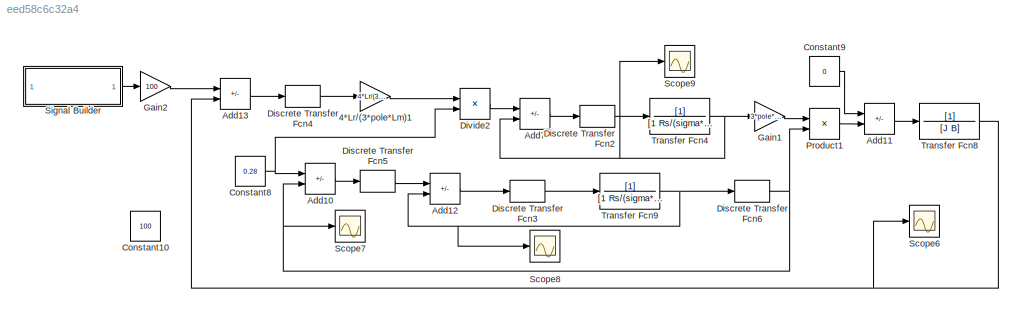
MODEL slx_eed58c6c32a4
KIND model
CONFIG AbsTol = auto
CONFIG EnableMultiTasking = off
CONFIG FixedStep = 0.001
CONFIG MaxStep = auto
CONFIG MinStep = auto
CONFIG RelTol = 1e-3
CONFIG SampleTimeConstraint = Unconstrained
CONFIG SolverName = FixedStepAuto
CONFIG StartTime = 0.0
CONFIG StopTime = 2
BLOCK [Gain] 4*Lr//(3*pole*Lm)1
  Gain = 4*Lr/(3*pole*Lm)
BLOCK [Sum] Add10
  IconShape = rectangular
  Inputs = +-
BLOCK [Sum] Add11
  IconShape = rectangular
  Inputs = -+
BLOCK [Sum] Add12
  IconShape = rectangular
  Inputs = +-
BLOCK [Sum] Add13
  IconShape = rectangular
  Inputs = +-
BLOCK [Sum] Add7
  IconShape = rectangular
  Inputs = +-
BLOCK [Constant] Constant10
  Value = 100
BLOCK [Constant] Constant8
  Value = 0.28
BLOCK [Constant] Constant9
  Value = 0
BLOCK [DiscreteTransferFcn] Discrete Transfer Fcn2
  Denominator = [1 -1]
  InputPortMap = u0
  Numerator = [105.95 -94.05]
  SampleTime = 0.001
BLOCK [DiscreteTransferFcn] Discrete Transfer Fcn3
  Denominator = [1 -1]
  InputPortMap = u0
  Numerator = [105.95 -94.05]
  SampleTime = 0.001
BLOCK [DiscreteTransferFcn] Discrete Transfer Fcn4
  Denominator = [1 -1]
  InputPortMap = u0
  Numerator = [10.00125 -9.99875]
  SampleTime = 0.001
BLOCK [DiscreteTransferFcn] Discrete Transfer Fcn5
  Denominator = [1 -1]
  InputPortMap = u0
  Numerator = [10.03575*2 -9.96425*2]
  SampleTime = 0.001
BLOCK [DiscreteTransferFcn] Discrete Transfer Fcn6
  Denominator = [1 -0.99286869]
  InputPortMap = u0
  Numerator = [0.00029119 0.00029119]
  SampleTime = 0.001
BLOCK [Product] Divide2
  Inputs = */
BLOCK [Gain] Gain1
  Gain = 3*pole*Lm/(4*Lr)
BLOCK [Gain] Gain2
  Gain = 100
BLOCK [Product] Product1
BLOCK [Scope] Scope6
  Floating = off
  NumInputPorts = 1
  ScopeSpecificationString = Simulink.scopes.TimeScopeBlockCfg('CurrentConfiguration', extmgr.ConfigurationSet(extmgr.Configuration('Core','General UI',true),extmgr.Configuration('Core','Source UI',true),extmgr.Configuration('Sources','WiredSimulink',true,'DataLoggingVariableName','ScopeData1'),extmgr.Configuration('Visuals','Time Domain',true,'SerializedDisplays',{struct('MinYLimReal','-12.59129','MaxYLimReal','113.3216','YL...<+1378ch>
BLOCK [Scope] Scope7
  Floating = off
  NumInputPorts = 1
  ScopeSpecificationString = Simulink.scopes.TimeScopeBlockCfg('CurrentConfiguration', extmgr.ConfigurationSet(extmgr.Configuration('Core','General UI',true),extmgr.Configuration('Core','Source UI',true),extmgr.Configuration('Sources','WiredSimulink',true,'DataLoggingVariableName','ScopeData2'),extmgr.Configuration('Visuals','Time Domain',true,'SerializedDisplays',{struct('MinYLimReal','-0.035','MaxYLimReal','0.315','YLabelRe...<+1369ch>
BLOCK [Scope] Scope8
  Floating = off
  NumInputPorts = 1
  ScopeSpecificationString = Simulink.scopes.TimeScopeBlockCfg('CurrentConfiguration', extmgr.ConfigurationSet(extmgr.Configuration('Core','General UI',true),extmgr.Configuration('Core','Source UI',true),extmgr.Configuration('Sources','WiredSimulink',true,'DataLoggingVariableName','ScopeData3'),extmgr.Configuration('Visuals','Time Domain',true,'SerializedDisplays',{struct('MinYLimReal','-0.8058','MaxYLimReal','7.25219','YLabe...<+1370ch>
BLOCK [Scope] Scope9
  Floating = off
  NumInputPorts = 1
  ScopeSpecificationString = Simulink.scopes.TimeScopeBlockCfg('CurrentConfiguration', extmgr.ConfigurationSet(extmgr.Configuration('Core','General UI',true),extmgr.Configuration('Core','Source UI',true),extmgr.Configuration('Sources','WiredSimulink',true,'DataLoggingVariableName','ScopeData4'),extmgr.Configuration('Visuals','Time Domain',true,'SerializedDisplays',{struct('MinYLimReal','0.295','MaxYLimReal','1.39571','YLabelR...<+1381ch>
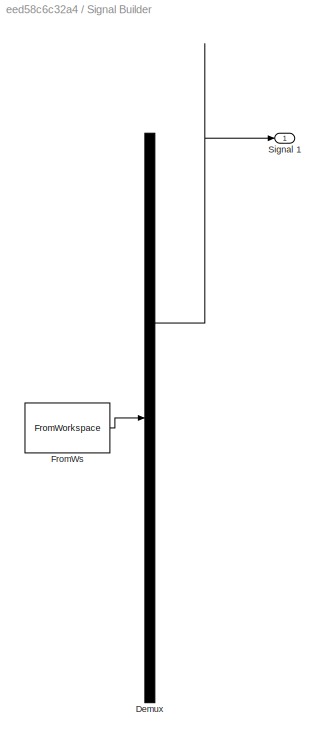
BLOCK [SubSystem] Signal Builder
  ClipboardFcn = sigbuilder_block('clipboard');
  CloseFcn = sigbuilder_block('close');
  ContinueFcn = sigbuilder_block('continue');
  CopyFcn = sigbuilder_block('copy');
  DeleteFcn = sigbuilder_block('delete');
  LoadFcn = sigbuilder_block('load');
  MaskHideContents = on
  ModelCloseFcn = sigbuilder_block('modelClose');
  NameChangeFcn = sigbuilder_block('namechange');
  OpenFcn = sigbuilder_block('open',[437.6 199.2 550.4 400 ]);
  PauseFcn = sigbuilder_block('pause');
  PreSaveFcn = sigbuilder_block('preSave');
  StartFcn = sigbuilder_block('start');
  StopFcn = sigbuilder_block('stop');
  Tag = STV Subsys
BLOCK [Demux] Signal Builder/Demux
  DisplayOption = none
  Outputs = 1
  Tag = STV Demux
BLOCK [FromWorkspace] Signal Builder/FromWs
  Tag = STV FromWs
  VariableName = tuvar
BLOCK [Outport] Signal Builder/Signal 1
  Tag = STV Outport
BLOCK [TransferFcn] Transfer Fcn4
  Denominator = [1 Rs/(sigma*Ls)]
BLOCK [TransferFcn] Transfer Fcn8
  Denominator = [J B]
BLOCK [TransferFcn] Transfer Fcn9
  Denominator = [1 Rs/(sigma*Ls)-(1-sigma)/(sigma*Tr)]
LINE 4*Lr//(3*pole*Lm)1:1 -> Divide2:1
LINE Add10:1 -> Discrete Transfer Fcn5:1
LINE Add11:1 -> Transfer Fcn8:1
LINE Add12:1 -> Discrete Transfer Fcn3:1
LINE Add13:1 -> Discrete Transfer Fcn4:1
LINE Add7:1 -> Discrete Transfer Fcn2:1
NET Constant8:1 -> Add10:1, Divide2:2
LINE Constant9:1 -> Add11:1
LINE Discrete Transfer Fcn2:1 -> Transfer Fcn4:1
LINE Discrete Transfer Fcn3:1 -> Transfer Fcn9:1
LINE Discrete Transfer Fcn4:1 -> 4*Lr//(3*pole*Lm)1:1
LINE Discrete Transfer Fcn5:1 -> Add12:1
NET Discrete Transfer Fcn6:1 -> Add10:2, Product1:2, Scope7:1
LINE Divide2:1 -> Add7:1
LINE Gain1:1 -> Product1:1
LINE Gain2:1 -> Add13:1
LINE Product1:1 -> Add11:2
LINE Signal Builder:1 -> Gain2:1
NET Transfer Fcn4:1 -> Add7:2, Gain1:1, Scope9:1
NET Transfer Fcn8:1 -> Add13:2, Scope6:1
NET Transfer Fcn9:1 -> Add12:2, Discrete Transfer Fcn6:1, Scope8:1
note: NET lines group one-source signal fan-out (src -> all destinations, sorted); 1:1 wires keep LINE
